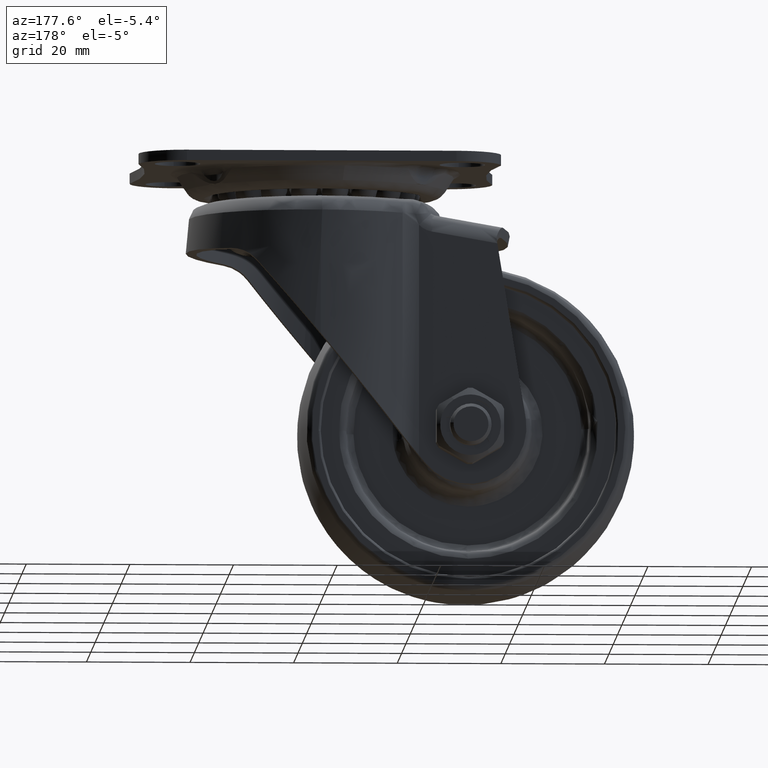
[diagram: clean part render]
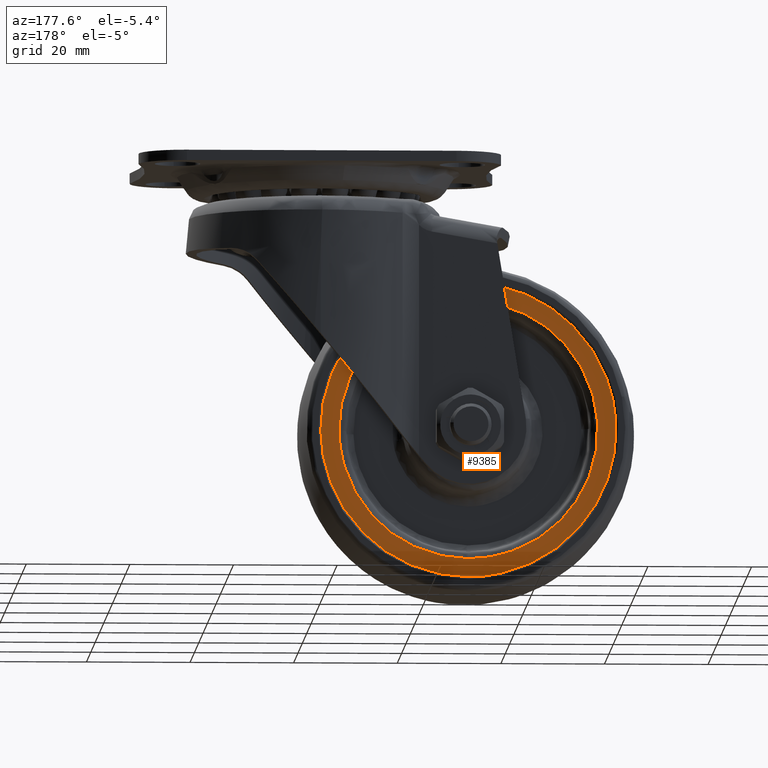
[diagram: same view with one face highlighted and labeled with its STEP entity id]
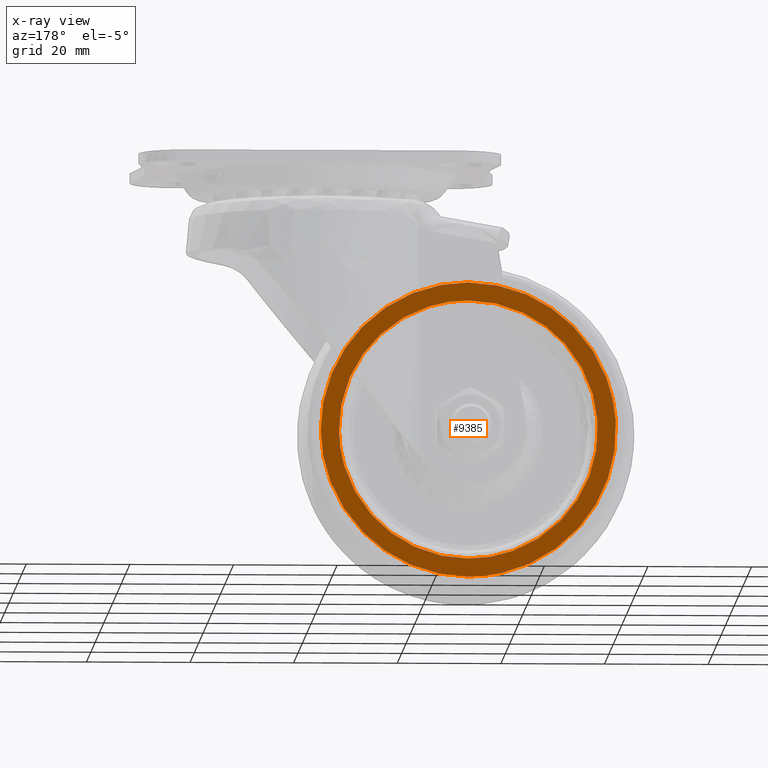
[diagram: x-ray of the same camera — body ghosted, the highlighted face saturated]
A machine part, auxiliary view. The second image highlights one B-rep face of the part: STEP entity #9385.
The next image is the same camera in x-ray: the body ghosted, the highlighted face saturated — about 0% of this face is hidden behind the body in this view.
In plain terms, the highlighted face is a freeform B-spline surface patch.
Its self-contained STEP definition (entity closure, byte-faithful):
#8370=CARTESIAN_POINT('',(-57.430621704451369,13.000000004532840,-50.512596330086303));
#8371=VERTEX_POINT('',#8370);
#8385=CARTESIAN_POINT('',(-29.0,13.0,-80.999994000000001));
#8386=VERTEX_POINT('',#8385);
#8387=CARTESIAN_POINT('',(-57.430621704451369,13.000000004532840,-50.512596330086289));
#8388=CARTESIAN_POINT('',(-57.500000000000007,12.999999999999998,-51.505084197557068));
#8389=CARTESIAN_POINT('',(-57.500000000000000,13.0,-52.499994000000001));
#8390=CARTESIAN_POINT('',(-57.500000000000000,13.0,-80.999994000000001));
#8391=CARTESIAN_POINT('',(-29.0,13.0,-80.999994000000001));
#8399=(BOUNDED_CURVE()B_SPLINE_CURVE(2,(#8387,#8388,#8389,#8390,#8391),.UNSPECIFIED.,.F.,.U.)B_SPLINE_CURVE_WITH_KNOTS((3,2,3),(0.737833686534970,0.750000000000000,1.0),.UNSPECIFIED.)CURVE()GEOMETRIC_REPRESENTATION_ITEM()RATIONAL_B_SPLINE_CURVE((0.972879876386719,0.985746277152536,1.0,0.707106781186547,1.0))REPRESENTATION_ITEM(''));
#8400=EDGE_CURVE('',#8371,#8386,#8399,.T.);
#8402=CARTESIAN_POINT('',(-0.502250240191541,13.000000004544249,-52.858126136699113));
#8403=VERTEX_POINT('',#8402);
#8404=CARTESIAN_POINT('',(-29.0,13.0,-80.999994000000001));
#8405=CARTESIAN_POINT('',(-0.855909997688114,13.000000000000002,-80.999994000000015));
#8406=CARTESIAN_POINT('',(-0.502250240191541,13.000000004544249,-52.858126136699113));
#8414=(BOUNDED_CURVE()B_SPLINE_CURVE(2,(#8404,#8405,#8406),.UNSPECIFIED.,.F.,.U.)B_SPLINE_CURVE_WITH_KNOTS((3,3),(0.0,0.247784295921437),.UNSPECIFIED.)CURVE()GEOMETRIC_REPRESENTATION_ITEM()RATIONAL_B_SPLINE_CURVE((1.0,0.709702639984581,0.994854295643343))REPRESENTATION_ITEM(''));
#8415=EDGE_CURVE('',#8386,#8403,#8414,.T.);
#8502=CARTESIAN_POINT('',(-29.0,13.0,-23.999994000000001));
#8503=VERTEX_POINT('',#8502);
#8504=CARTESIAN_POINT('',(-0.502250240191541,13.000000004544248,-52.858126136699113));
#8505=CARTESIAN_POINT('',(-0.500000000000001,13.000000000000004,-52.679067137792430));
#8506=CARTESIAN_POINT('',(-0.500000000000000,13.0,-52.499994000000001));
#8507=CARTESIAN_POINT('',(-0.500000000000001,13.0,-23.999993999999997));
#8508=CARTESIAN_POINT('',(-29.0,13.0,-23.999994000000001));
#8516=(BOUNDED_CURVE()B_SPLINE_CURVE(2,(#8504,#8505,#8506,#8507,#8508),.UNSPECIFIED.,.F.,.U.)B_SPLINE_CURVE_WITH_KNOTS((3,2,3),(0.247784295921437,0.250000000000000,0.500000000000000),.UNSPECIFIED.)CURVE()GEOMETRIC_REPRESENTATION_ITEM()RATIONAL_B_SPLINE_CURVE((0.994854295643343,0.997404141201967,1.0,0.707106781186547,1.0))REPRESENTATION_ITEM(''));
#8517=EDGE_CURVE('',#8403,#8503,#8516,.T.);
#8519=CARTESIAN_POINT('',(-29.0,13.0,-23.999994000000001));
#8520=CARTESIAN_POINT('',(-55.577300147073082,13.0,-23.999993999999997));
#8521=CARTESIAN_POINT('',(-57.430621704451369,13.000000004532843,-50.512596330086296));
#8529=(BOUNDED_CURVE()B_SPLINE_CURVE(2,(#8519,#8520,#8521),.UNSPECIFIED.,.F.,.U.)B_SPLINE_CURVE_WITH_KNOTS((3,3),(0.500000000000000,0.737833686534970),.UNSPECIFIED.)CURVE()GEOMETRIC_REPRESENTATION_ITEM()RATIONAL_B_SPLINE_CURVE((1.0,0.721360504034012,0.972879876386717))REPRESENTATION_ITEM(''));
#8530=EDGE_CURVE('',#8503,#8371,#8529,.T.);
#8565=CARTESIAN_POINT('',(-53.939141237817921,12.999999999999750,-50.756662751886637));
#8566=VERTEX_POINT('',#8565);
#8567=CARTESIAN_POINT('',(-29.0,13.0,-77.499994000000001));
#8568=VERTEX_POINT('',#8567);
#8569=CARTESIAN_POINT('',(-53.939141237817921,12.999999999999751,-50.756662751886637));
#8570=CARTESIAN_POINT('',(-54.000000000000014,13.000000000000004,-51.627266101891642));
#8571=CARTESIAN_POINT('',(-54.000000000000007,13.0,-52.499994000000001));
#8572=CARTESIAN_POINT('',(-54.000000000000007,13.0,-77.499994000000001));
#8573=CARTESIAN_POINT('',(-29.0,13.0,-77.499994000000001));
#8581=(BOUNDED_CURVE()B_SPLINE_CURVE(2,(#8569,#8570,#8571,#8572,#8573),.UNSPECIFIED.,.F.,.U.)B_SPLINE_CURVE_WITH_KNOTS((3,2,3),(0.737833686518087,0.750000000000000,1.0),.UNSPECIFIED.)CURVE()GEOMETRIC_REPRESENTATION_ITEM()RATIONAL_B_SPLINE_CURVE((0.972879876351009,0.985746277132756,1.0,0.707106781186547,1.0))REPRESENTATION_ITEM(''));
#8582=EDGE_CURVE('',#8566,#8568,#8581,.T.);
#8601=CARTESIAN_POINT('',(-4.001974504445167,12.999999999999750,-52.814144991746467));
#8602=VERTEX_POINT('',#8601);
#8616=CARTESIAN_POINT('',(-29.0,13.0,-77.499994000000001));
#8617=CARTESIAN_POINT('',(-4.312201756904659,13.000000000000002,-77.499994000000001));
#8618=CARTESIAN_POINT('',(-4.001974504445167,12.999999999999753,-52.814144991746467));
#8626=(BOUNDED_CURVE()B_SPLINE_CURVE(2,(#8616,#8617,#8618),.UNSPECIFIED.,.F.,.U.)B_SPLINE_CURVE_WITH_KNOTS((3,3),(0.0,0.247784295889051),.UNSPECIFIED.)CURVE()GEOMETRIC_REPRESENTATION_ITEM()RATIONAL_B_SPLINE_CURVE((1.0,0.709702640022524,0.994854295568802))REPRESENTATION_ITEM(''));
#8627=EDGE_CURVE('',#8568,#8602,#8626,.T.);
#8655=CARTESIAN_POINT('',(-29.0,13.0,-27.499994000000001));
#8656=VERTEX_POINT('',#8655);
#8657=CARTESIAN_POINT('',(-29.0,13.0,-27.499994000000001));
#8658=CARTESIAN_POINT('',(-52.313421179349007,13.0,-27.499994000000004));
#8659=CARTESIAN_POINT('',(-53.939141237817921,12.999999999999758,-50.756662751886637));
#8667=(BOUNDED_CURVE()B_SPLINE_CURVE(2,(#8657,#8658,#8659),.UNSPECIFIED.,.F.,.U.)B_SPLINE_CURVE_WITH_KNOTS((3,3),(0.500000000000000,0.737833686518087),.UNSPECIFIED.)CURVE()GEOMETRIC_REPRESENTATION_ITEM()RATIONAL_B_SPLINE_CURVE((1.0,0.721360504053791,0.972879876351010))REPRESENTATION_ITEM(''));
#8668=EDGE_CURVE('',#8656,#8566,#8667,.T.);
#8670=CARTESIAN_POINT('',(-4.001974504445167,12.999999999999753,-52.814144991746467));
#8671=CARTESIAN_POINT('',(-4.0,13.000000000000002,-52.657075702119911));
#8672=CARTESIAN_POINT('',(-4.0,13.0,-52.499994000000001));
#8673=CARTESIAN_POINT('',(-4.0,13.0,-27.499994000000001));
#8674=CARTESIAN_POINT('',(-29.0,13.0,-27.499994000000001));
#8682=(BOUNDED_CURVE()B_SPLINE_CURVE(2,(#8670,#8671,#8672,#8673,#8674),.UNSPECIFIED.,.F.,.U.)B_SPLINE_CURVE_WITH_KNOTS((3,2,3),(0.247784295889051,0.250000000000000,0.500000000000000),.UNSPECIFIED.)CURVE()GEOMETRIC_REPRESENTATION_ITEM()RATIONAL_B_SPLINE_CURVE((0.994854295568802,0.997404141164024,1.0,0.707106781186547,1.0))REPRESENTATION_ITEM(''));
#8683=EDGE_CURVE('',#8602,#8656,#8682,.T.);
#9368=CARTESIAN_POINT('',(-60.343625083842518,13.0,-21.152844314121101));
#9369=CARTESIAN_POINT('',(-60.343625083842518,13.0,-83.847141137780341));
#9370=CARTESIAN_POINT('',(2.344626437815986,13.0,-21.152844314121101));
#9371=CARTESIAN_POINT('',(2.344626437815986,13.0,-83.847141137780341));
#9372=B_SPLINE_SURFACE_WITH_KNOTS('',1,1,((#9368,#9370),(#9369,#9371)),.UNSPECIFIED.,.F.,.F.,.U.,(2,2),(2,2),(0.0,62.694296823659251),(0.0,62.688251521658493),.UNSPECIFIED.);
#9373=ORIENTED_EDGE('',*,*,#8400,.F.);
#9374=ORIENTED_EDGE('',*,*,#8530,.F.);
#9375=ORIENTED_EDGE('',*,*,#8517,.F.);
#9376=ORIENTED_EDGE('',*,*,#8415,.F.);
#9377=EDGE_LOOP('',(#9373,#9374,#9375,#9376));
#9378=FACE_OUTER_BOUND('',#9377,.T.);
#9379=ORIENTED_EDGE('',*,*,#8627,.T.);
#9380=ORIENTED_EDGE('',*,*,#8683,.T.);
#9381=ORIENTED_EDGE('',*,*,#8668,.T.);
#9382=ORIENTED_EDGE('',*,*,#8582,.T.);
#9383=EDGE_LOOP('',(#9379,#9380,#9381,#9382));
#9384=FACE_BOUND('',#9383,.T.);
#9385=ADVANCED_FACE('',(#9378,#9384),#9372,.F.);